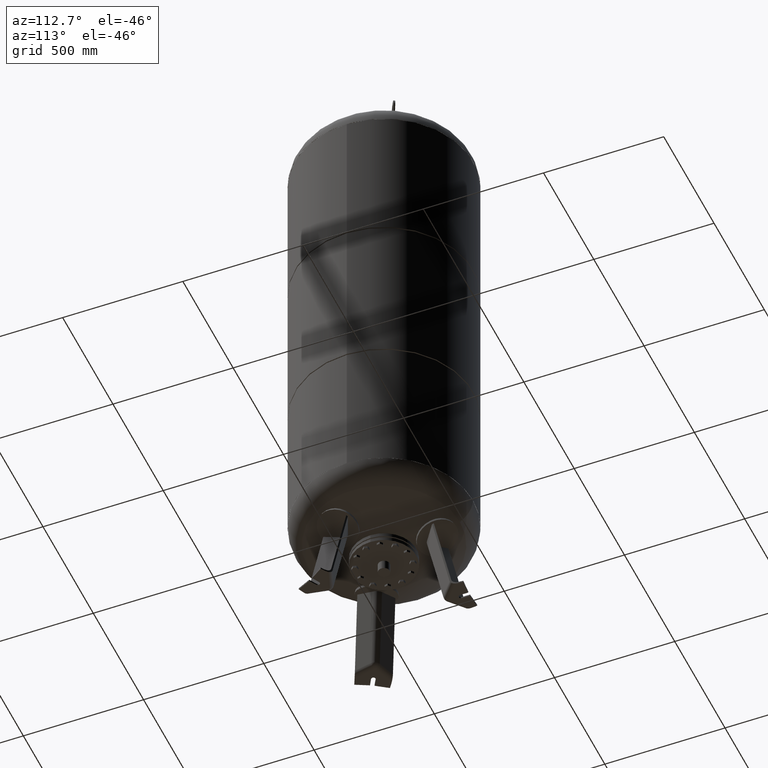
[diagram: clean part render]
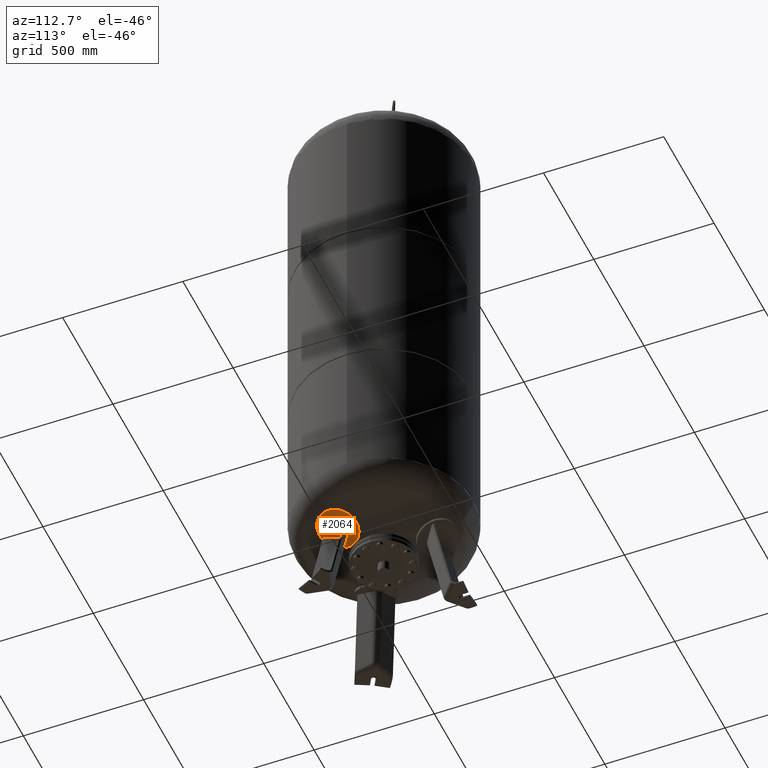
[diagram: same view with one face highlighted and labeled with its STEP entity id]
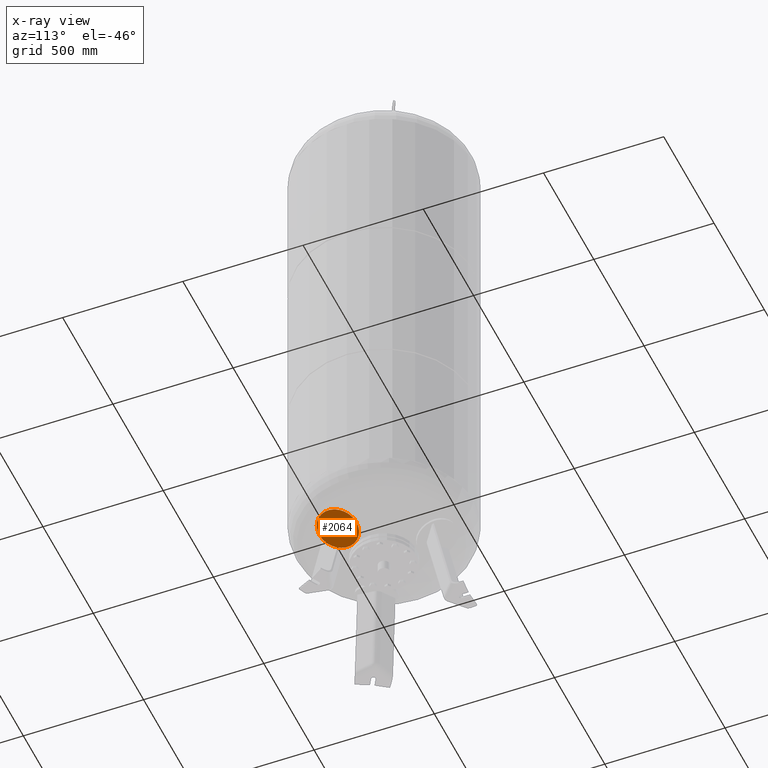
[diagram: x-ray of the same camera — body ghosted, the highlighted face saturated]
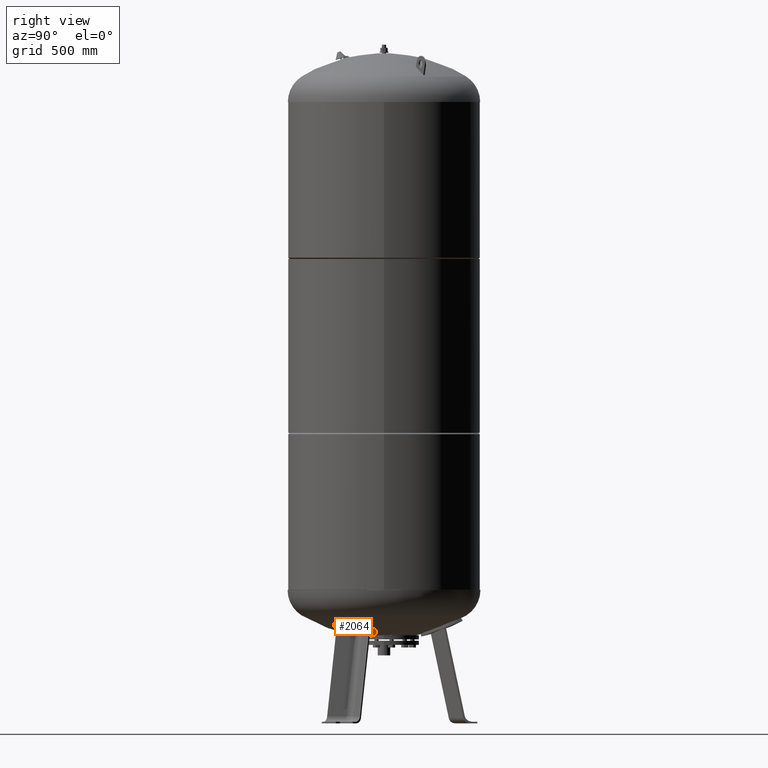
[diagram: same view with one face highlighted and labeled with its STEP entity id]
A machine part, auxiliary view. The second image highlights one B-rep face of the part: STEP entity #2064.
The next image is the same camera in x-ray: the body ghosted, the highlighted face saturated — about 0% of this face is hidden behind the body in this view.
A second angle (right view) of the same face is appended — the face is thin or edge-on in the first view.
In plain terms, the highlighted spherical surface has radius 594 mm.
Its self-contained STEP definition (entity closure, byte-faithful):
#1972=CARTESIAN_POINT('',(261.389877286085720,-150.913516195399100,393.757372581269070));
#1973=VERTEX_POINT('',#1972);
#1982=CARTESIAN_POINT('',(123.944135096262900,-71.559179943136826,332.834821158567990));
#1983=VERTEX_POINT('',#1982);
#1984=CARTESIAN_POINT('',(192.667006191174290,-111.236348069267960,363.296096869918470));
#1985=DIRECTION('',(0.310355748208370,-0.179183974772650,-0.933580426497202));
#1986=DIRECTION('',(0.808504365822487,-0.466790213248602,0.358367949545300));
#1987=AXIS2_PLACEMENT_3D('',#1984,#1985,#1986);
#1988=CIRCLE('',#1987,85.0);
#1989=EDGE_CURVE('',#1983,#1973,#1988,.T.);
#2045=CARTESIAN_POINT('',(192.667006191174290,-111.236348069267960,363.296096869918470));
#2046=DIRECTION('',(0.310355748208370,-0.179183974772650,-0.933580426497202));
#2047=DIRECTION('',(0.808504365822487,-0.466790213248602,0.358367949545300));
#2048=AXIS2_PLACEMENT_3D('',#2045,#2046,#2047);
#2049=CIRCLE('',#2048,85.0);
#2050=EDGE_CURVE('',#1973,#1983,#2049,.T.);
#2055=CARTESIAN_POINT('',(10.212929378063336,-5.896437706473591,912.135793993800230));
#2056=DIRECTION('',(-0.500000000000001,-0.866025403784438,-1.554724E-016));
#2057=DIRECTION('',(0.808504365822487,-0.466790213248602,0.358367949545300));
#2058=AXIS2_PLACEMENT_3D('',#2055,#2056,#2057);
#2059=SPHERICAL_SURFACE('',#2058,594.0);
#2060=ORIENTED_EDGE('',*,*,#2050,.T.);
#2061=ORIENTED_EDGE('',*,*,#1989,.T.);
#2062=EDGE_LOOP('',(#2060,#2061));
#2063=FACE_OUTER_BOUND('',#2062,.T.);
#2064=ADVANCED_FACE('',(#2063),#2059,.T.);